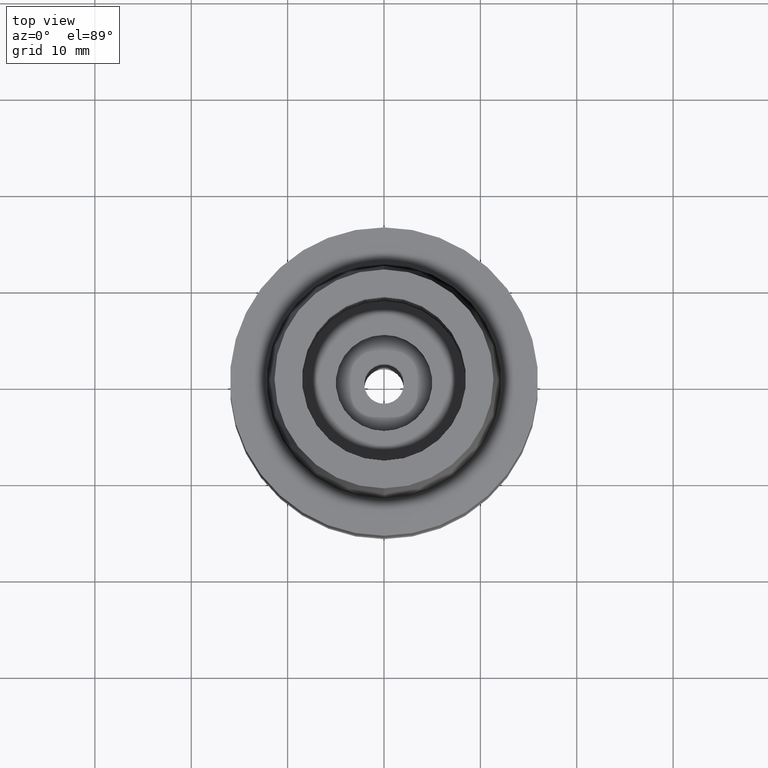
[diagram: clean part render]
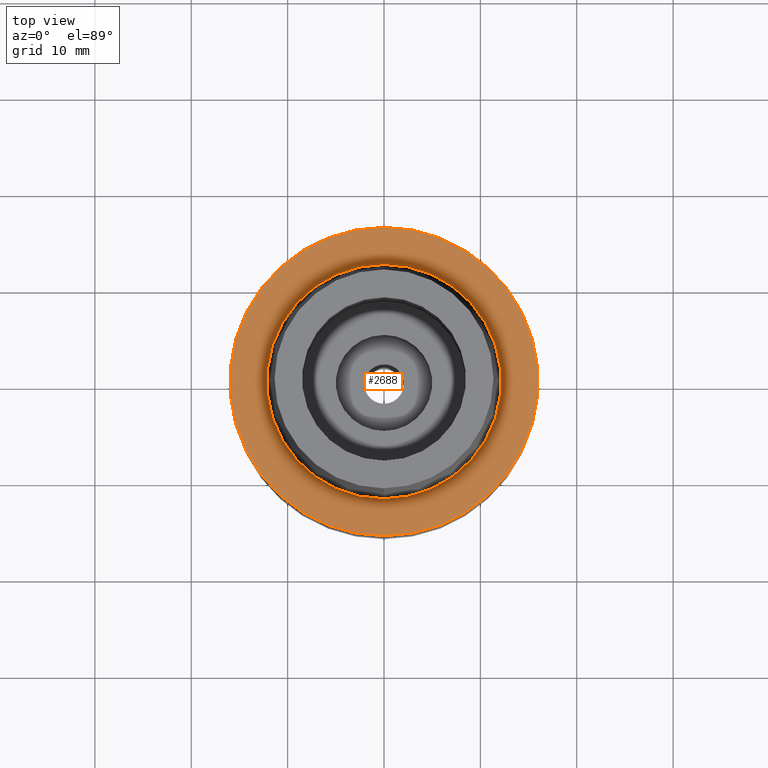
[diagram: same view with one face highlighted and labeled with its STEP entity id]
A machine part, top view. The second image highlights one B-rep face of the part: STEP entity #2688.
In plain terms, the highlighted planar face has unit normal (0, 0, -1).
Its self-contained STEP definition (entity closure, byte-faithful):
#1 = VERTEX_POINT ( 'NONE', #89 ) ;
#41 = CARTESIAN_POINT ( 'NONE',  ( 0.0000000000000000000, 0.0000000000000000000, -1.776356839399999922E-14 ) ) ;
#49 = AXIS2_PLACEMENT_3D ( 'NONE', #749, #1580, #699 ) ;
#89 = CARTESIAN_POINT ( 'NONE',  ( 0.0000000000000000000, -12.15999970738999991, 1.989519660127999812E-13 ) ) ;
#157 = CIRCLE ( 'NONE', #1894, 12.15999970738999991 ) ;
#246 = CARTESIAN_POINT ( 'NONE',  ( 0.0000000000000000000, 12.15999970738999991, 3.907985046680999726E-14 ) ) ;
#301 = DIRECTION ( 'NONE',  ( 0.0000000000000000000, 0.0000000000000000000, 1.000000000000000000 ) ) ;
#329 = CARTESIAN_POINT ( 'NONE',  ( 0.0000000000000000000, -16.00000000000000000, -1.776356839399999922E-14 ) ) ;
#371 = ORIENTED_EDGE ( 'NONE', *, *, #1796, .F. ) ;
#459 = DIRECTION ( 'NONE',  ( 0.0000000000000000000, 1.000000000000000000, 0.0000000000000000000 ) ) ;
#518 = CARTESIAN_POINT ( 'NONE',  ( 0.0000000000000000000, 0.0000000000000000000, 1.989519660127999812E-13 ) ) ;
#571 = CIRCLE ( 'NONE', #1178, 16.00000000000000000 ) ;
#619 = DIRECTION ( 'NONE',  ( 0.0000000000000000000, -1.000000000000000000, 0.0000000000000000000 ) ) ;
#638 = ORIENTED_EDGE ( 'NONE', *, *, #1578, .F. ) ;
#668 = VERTEX_POINT ( 'NONE', #936 ) ;
#699 = DIRECTION ( 'NONE',  ( 0.0000000000000000000, -1.000000000000000000, 0.0000000000000000000 ) ) ;
#718 = DIRECTION ( 'NONE',  ( 0.0000000000000000000, 1.000000000000000000, 0.0000000000000000000 ) ) ;
#749 = CARTESIAN_POINT ( 'NONE',  ( 0.0000000000000000000, 0.0000000000000000000, 0.0000000000000000000 ) ) ;
#756 = EDGE_CURVE ( 'NONE', #1, #2525, #2582, .T. ) ;
#840 = EDGE_LOOP ( 'NONE', ( #371, #1172 ) ) ;
#847 = DIRECTION ( 'NONE',  ( 0.0000000000000000000, 0.0000000000000000000, -1.000000000000000000 ) ) ;
#936 = CARTESIAN_POINT ( 'NONE',  ( 0.0000000000000000000, 16.00000000000000000, -1.184237892934000027E-14 ) ) ;
#973 = AXIS2_PLACEMENT_3D ( 'NONE', #1416, #1840, #619 ) ;
#999 = CIRCLE ( 'NONE', #1082, 16.00000000000000000 ) ;
#1082 = AXIS2_PLACEMENT_3D ( 'NONE', #2283, #1608, #1521 ) ;
#1172 = ORIENTED_EDGE ( 'NONE', *, *, #1759, .F. ) ;
#1178 = AXIS2_PLACEMENT_3D ( 'NONE', #41, #847, #459 ) ;
#1332 = PLANE ( 'NONE',  #49 ) ;
#1416 = CARTESIAN_POINT ( 'NONE',  ( 0.0000000000000000000, 0.0000000000000000000, 1.989519660127999812E-13 ) ) ;
#1521 = DIRECTION ( 'NONE',  ( 0.0000000000000000000, -1.000000000000000000, 0.0000000000000000000 ) ) ;
#1578 = EDGE_CURVE ( 'NONE', #2525, #1, #157, .T. ) ;
#1580 = DIRECTION ( 'NONE',  ( 0.0000000000000000000, 0.0000000000000000000, -1.000000000000000000 ) ) ;
#1608 = DIRECTION ( 'NONE',  ( 0.0000000000000000000, 0.0000000000000000000, -1.000000000000000000 ) ) ;
#1759 = EDGE_CURVE ( 'NONE', #2594, #668, #999, .T. ) ;
#1796 = EDGE_CURVE ( 'NONE', #668, #2594, #571, .T. ) ;
#1840 = DIRECTION ( 'NONE',  ( 0.0000000000000000000, 0.0000000000000000000, 1.000000000000000000 ) ) ;
#1894 = AXIS2_PLACEMENT_3D ( 'NONE', #518, #301, #718 ) ;
#1988 = FACE_OUTER_BOUND ( 'NONE', #840, .T. ) ;
#2124 = EDGE_LOOP ( 'NONE', ( #638, #2380 ) ) ;
#2283 = CARTESIAN_POINT ( 'NONE',  ( 0.0000000000000000000, 0.0000000000000000000, -1.776356839399999922E-14 ) ) ;
#2380 = ORIENTED_EDGE ( 'NONE', *, *, #756, .F. ) ;
#2525 = VERTEX_POINT ( 'NONE', #246 ) ;
#2582 = CIRCLE ( 'NONE', #973, 12.15999970738999991 ) ;
#2594 = VERTEX_POINT ( 'NONE', #329 ) ;
#2617 = FACE_BOUND ( 'NONE', #2124, .T. ) ;
#2688 = ADVANCED_FACE ( 'NONE', ( #1988, #2617 ), #1332, .F. ) ;